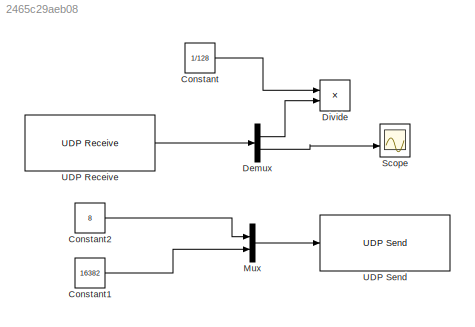
MODEL slx_2465c29aeb08
KIND model
CONFIG AbsTol = auto
CONFIG EnableMultiTasking = off
CONFIG FixedStep = auto
CONFIG InitFcn = u = udpport;\nwriteline(u,"M;2B8:i;574:i;", "127.0.0.1", 27015)\nwriteline(u,"C;310A:c;089A:s;", "127.0.0.1", 27015)
CONFIG MaxStep = auto
CONFIG MinStep = auto
CONFIG RelTol = 1e-3
CONFIG SampleTimeConstraint = Unconstrained
CONFIG SolverName = VariableStepAuto
CONFIG StartTime = 0.0
CONFIG StopTime = 5
BLOCK [Constant] Constant
  Value = 1/128
BLOCK [Constant] Constant1
  Value = 16382
BLOCK [Constant] Constant2
  Value = 8
BLOCK [Demux] Demux
  Outputs = 2
BLOCK [Product] Divide
BLOCK [Mux] Mux
  DisplayOption = bar
  Inputs = 2
BLOCK [Scope] Scope
  Floating = off
  NumInputPorts = 2
  ScopeSpecificationString = Simulink.scopes.TimeScopeBlockCfg('CurrentConfiguration', extmgr.ConfigurationSet(extmgr.Configuration('Core','General UI',true),extmgr.Configuration('Core','Source UI',true),extmgr.Configuration('Sources','WiredSimulink',true),extmgr.Configuration('Visuals','Time Domain',true,'SerializedDisplays',{struct('MinYLimReal','-1.00000','MaxYLimReal','1.00000','YLabelReal','','MinYLimMag','0.00000','MaxY...<+1989ch>
BLOCK [Reference] UDP Receive  REF=instrumentlib/UDP Receive
  SourceBlock = instrumentlib/UDP Receive
  SourceType = instrument.system.UDPReceive
BLOCK [Reference] UDP Send  REF=instrumentlib/UDP Send
  SourceBlock = instrumentlib/UDP Send
  SourceType = instrument.system.UDPSend
LINE Constant1:1 -> Mux:2
LINE Constant2:1 -> Mux:1
LINE Constant:1 -> Divide:1
LINE Demux:1 -> Divide:2
LINE Demux:2 -> Scope:2
LINE Mux:1 -> UDP Send:1
LINE UDP Receive:1 -> Demux:1
